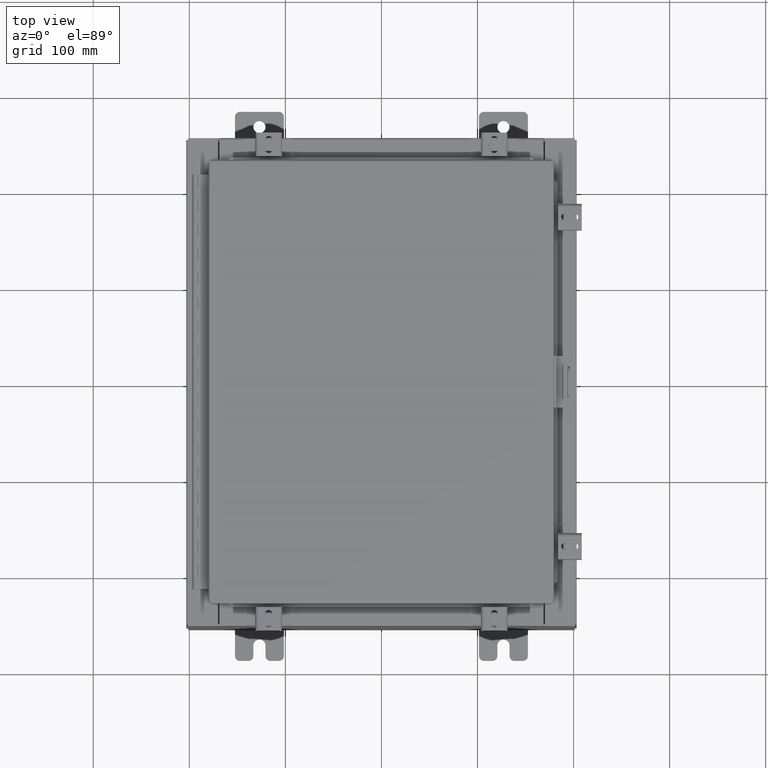
[diagram: clean part render]
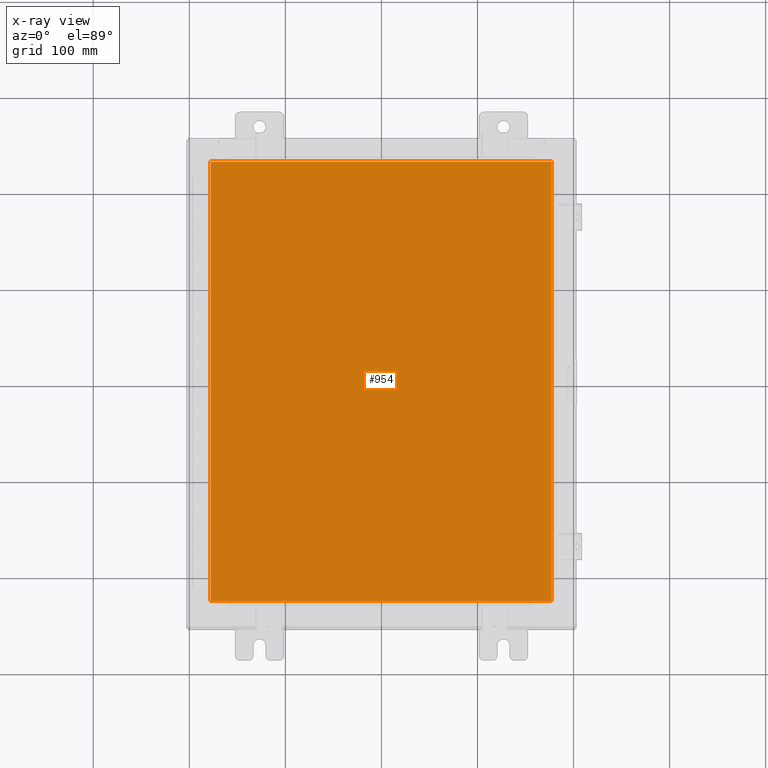
[diagram: x-ray — body ghosted, one internal face saturated and labeled with its STEP entity id]
A machine part, top view, then the same camera in x-ray: the body is ghosted and one INTERNAL B-rep face — a face not visible from any outside direction — is saturated and labeled: STEP entity #954.
In plain terms, the highlighted planar face has unit normal (0, 0, -1).
Its self-contained STEP definition (entity closure, byte-faithful):
#26 = LINE ( 'NONE', #4720, #16057 ) ;
#954 = ADVANCED_FACE ( 'NONE', ( #26920 ), #7131, .T. ) ;
#1486 = VERTEX_POINT ( 'NONE', #13091 ) ;
#2252 = ORIENTED_EDGE ( 'NONE', *, *, #23152, .F. ) ;
#4720 = CARTESIAN_POINT ( 'NONE',  ( -6.990299999999997700, -9.006299999999997800, -0.07470000000000019700 ) ) ;
#5528 = CARTESIAN_POINT ( 'NONE',  ( -6.990299999999997700, 9.006300000000001300, -0.07470000000000019700 ) ) ;
#7131 = PLANE ( 'NONE',  #14554 ) ;
#7223 = DIRECTION ( 'NONE',  ( -1.000000000000000000, 0.0000000000000000000, -0.0000000000000000000 ) ) ;
#9987 = ORIENTED_EDGE ( 'NONE', *, *, #22087, .F. ) ;
#11288 = CARTESIAN_POINT ( 'NONE',  ( -6.990299999999997700, 9.006299999999999500, -0.07470000000000000300 ) ) ;
#11724 = VERTEX_POINT ( 'NONE', #13978 ) ;
#12434 = CARTESIAN_POINT ( 'NONE',  ( 6.990300000000002200, 9.006300000000001300, -0.07470000000000073800 ) ) ;
#13091 = CARTESIAN_POINT ( 'NONE',  ( 6.990300000000002200, -9.006299999999997800, -0.07470000000000000300 ) ) ;
#13978 = CARTESIAN_POINT ( 'NONE',  ( 6.990300000000001300, 9.006300000000001300, -0.07470000000000000300 ) ) ;
#14554 = AXIS2_PLACEMENT_3D ( 'NONE', #16274, #20841, #7223 ) ;
#14703 = EDGE_CURVE ( 'NONE', #20182, #1486, #26, .T. ) ;
#15099 = VECTOR ( 'NONE', #19307, 39.37007874015748100 ) ;
#15615 = VECTOR ( 'NONE', #28305, 39.37007874015748100 ) ;
#16057 = VECTOR ( 'NONE', #20638, 39.37007874015748100 ) ;
#16162 = EDGE_LOOP ( 'NONE', ( #9987, #16997, #22004, #2252 ) ) ;
#16274 = CARTESIAN_POINT ( 'NONE',  ( 0.0000000000000000000, 0.0000000000000000000, -0.07470000000000000300 ) ) ;
#16997 = ORIENTED_EDGE ( 'NONE', *, *, #14703, .F. ) ;
#17449 = DIRECTION ( 'NONE',  ( 0.0000000000000000000, 1.000000000000000000, 0.0000000000000000000 ) ) ;
#19307 = DIRECTION ( 'NONE',  ( -1.000000000000000000, -0.0000000000000000000, -0.0000000000000000000 ) ) ;
#20182 = VERTEX_POINT ( 'NONE', #25130 ) ;
#20424 = EDGE_CURVE ( 'NONE', #22278, #20182, #21669, .T. ) ;
#20638 = DIRECTION ( 'NONE',  ( 1.000000000000000000, -0.0000000000000000000, -0.0000000000000000000 ) ) ;
#20841 = DIRECTION ( 'NONE',  ( 0.0000000000000000000, 0.0000000000000000000, -1.000000000000000000 ) ) ;
#21669 = LINE ( 'NONE', #5528, #15615 ) ;
#21920 = VECTOR ( 'NONE', #17449, 39.37007874015748100 ) ;
#22004 = ORIENTED_EDGE ( 'NONE', *, *, #20424, .F. ) ;
#22087 = EDGE_CURVE ( 'NONE', #1486, #11724, #29394, .T. ) ;
#22278 = VERTEX_POINT ( 'NONE', #11288 ) ;
#23152 = EDGE_CURVE ( 'NONE', #11724, #22278, #27182, .T. ) ;
#25130 = CARTESIAN_POINT ( 'NONE',  ( -6.990299999999996800, -9.006299999999997800, -0.07470000000000000300 ) ) ;
#26493 = CARTESIAN_POINT ( 'NONE',  ( 6.990300000000002200, -9.006299999999997800, -0.07470000000000019700 ) ) ;
#26920 = FACE_OUTER_BOUND ( 'NONE', #16162, .T. ) ;
#27182 = LINE ( 'NONE', #12434, #15099 ) ;
#28305 = DIRECTION ( 'NONE',  ( 0.0000000000000000000, -1.000000000000000000, 0.0000000000000000000 ) ) ;
#29394 = LINE ( 'NONE', #26493, #21920 ) ;